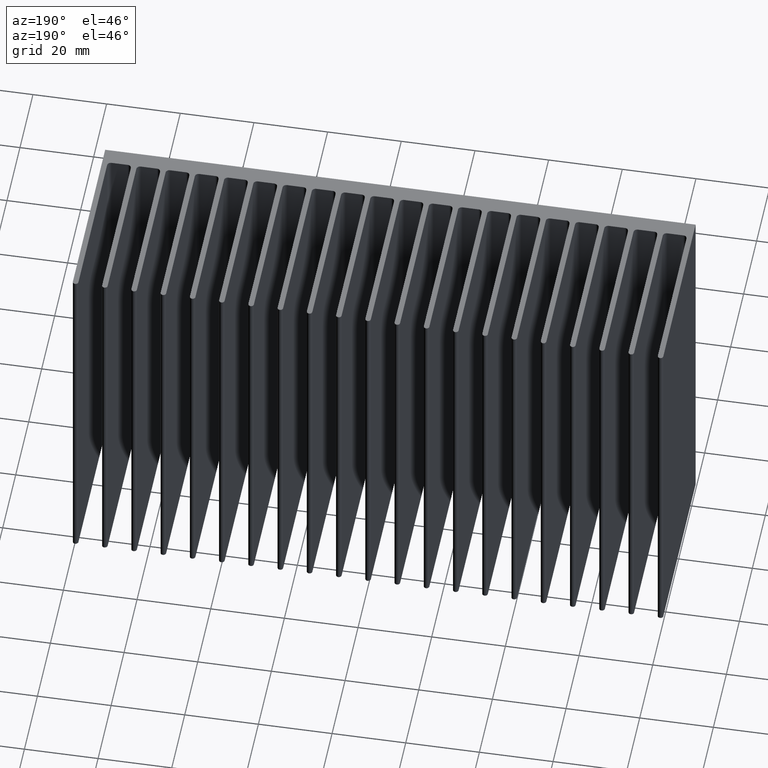
[diagram: clean part render]
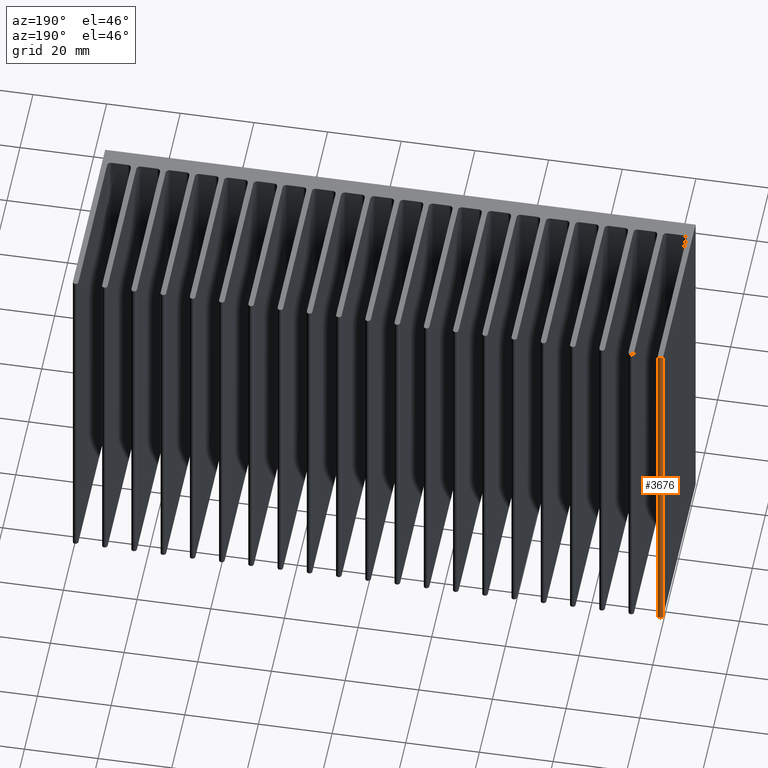
[diagram: same view with one face highlighted and labeled with its STEP entity id]
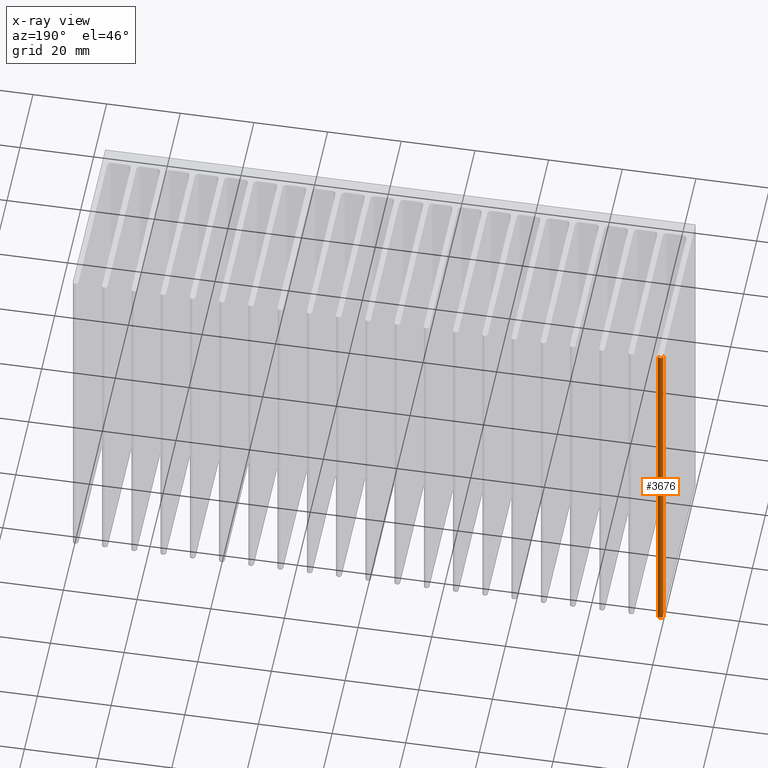
[diagram: x-ray of the same camera — body ghosted, the highlighted face saturated]
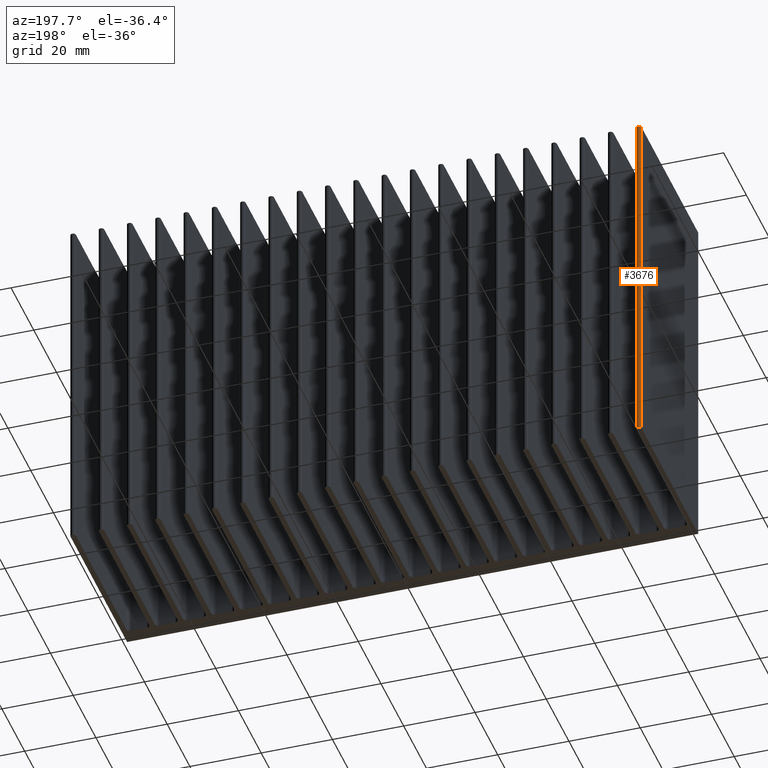
[diagram: same view with one face highlighted and labeled with its STEP entity id]
A machine part, auxiliary view. The second image highlights one B-rep face of the part: STEP entity #3676.
The next image is the same camera in x-ray: the body ghosted, the highlighted face saturated — about 0% of this face is hidden behind the body in this view.
A second angle (auxiliary view) of the same face is appended — the face is thin or edge-on in the first view.
In plain terms, the highlighted cylindrical surface (edge-blend (fillet) strip) has radius 0.75 mm, axis along (-0, -0, -1).
Its self-contained STEP definition (entity closure, byte-faithful):
#63 = VERTEX_POINT ( 'NONE', #160 ) ;
#81 = DIRECTION ( 'NONE',  ( -0.0000000000000000000, -0.0000000000000000000, -1.000000000000000000 ) ) ;
#98 = EDGE_CURVE ( 'NONE', #2960, #63, #337, .T. ) ;
#121 = CARTESIAN_POINT ( 'NONE',  ( -78.64999999999950830, 24.49999999999925748, 50.00000000000000000 ) ) ;
#160 = CARTESIAN_POINT ( 'NONE',  ( -78.64999999999950830, 24.49999999999925748, -50.00000000000000000 ) ) ;
#337 = LINE ( 'NONE', #121, #2794 ) ;
#680 = AXIS2_PLACEMENT_3D ( 'NONE', #1217, #1560, #4246 ) ;
#693 = EDGE_CURVE ( 'NONE', #2960, #1184, #2180, .T. ) ;
#716 = CARTESIAN_POINT ( 'NONE',  ( -80.15000000000087255, 24.49999999999925748, -50.00000000000000000 ) ) ;
#1042 = DIRECTION ( 'NONE',  ( 1.000000000000000000, 0.0000000000000000000, 0.0000000000000000000 ) ) ;
#1184 = VERTEX_POINT ( 'NONE', #2592 ) ;
#1217 = CARTESIAN_POINT ( 'NONE',  ( -79.40000000000088676, 24.49999999999834088, 50.00000000000000000 ) ) ;
#1330 = AXIS2_PLACEMENT_3D ( 'NONE', #3275, #3281, #3218 ) ;
#1384 = CARTESIAN_POINT ( 'NONE',  ( -79.40000000000088676, 24.49999999999834088, -50.00000000000000000 ) ) ;
#1498 = CARTESIAN_POINT ( 'NONE',  ( -78.64999999999950830, 24.49999999999925748, 50.00000000000000000 ) ) ;
#1560 = DIRECTION ( 'NONE',  ( -0.0000000000000000000, -0.0000000000000000000, -1.000000000000000000 ) ) ;
#1763 = LINE ( 'NONE', #2272, #2232 ) ;
#2180 = CIRCLE ( 'NONE', #1330, 0.7500000000009166001 ) ;
#2232 = VECTOR ( 'NONE', #4248, 1000.000000000000000 ) ;
#2241 = CIRCLE ( 'NONE', #3813, 0.7499999999999867883 ) ;
#2272 = CARTESIAN_POINT ( 'NONE',  ( -80.15000000000087255, 24.49999999999925748, 50.00000000000000000 ) ) ;
#2296 = CYLINDRICAL_SURFACE ( 'NONE', #680, 0.7499999999999867883 ) ;
#2318 = VERTEX_POINT ( 'NONE', #716 ) ;
#2378 = EDGE_CURVE ( 'NONE', #1184, #2318, #1763, .T. ) ;
#2592 = CARTESIAN_POINT ( 'NONE',  ( -80.15000000000087255, 24.49999999999925748, 50.00000000000000000 ) ) ;
#2627 = ORIENTED_EDGE ( 'NONE', *, *, #98, .T. ) ;
#2645 = FACE_OUTER_BOUND ( 'NONE', #3557, .T. ) ;
#2794 = VECTOR ( 'NONE', #81, 1000.000000000000000 ) ;
#2811 = ORIENTED_EDGE ( 'NONE', *, *, #693, .F. ) ;
#2908 = ORIENTED_EDGE ( 'NONE', *, *, #2378, .F. ) ;
#2910 = ORIENTED_EDGE ( 'NONE', *, *, #3416, .T. ) ;
#2960 = VERTEX_POINT ( 'NONE', #1498 ) ;
#3218 = DIRECTION ( 'NONE',  ( 1.000000000000000000, 0.0000000000000000000, 0.0000000000000000000 ) ) ;
#3275 = CARTESIAN_POINT ( 'NONE',  ( -79.40000000000088676, 24.49999999999834088, 50.00000000000000000 ) ) ;
#3281 = DIRECTION ( 'NONE',  ( 0.0000000000000000000, 0.0000000000000000000, 1.000000000000000000 ) ) ;
#3344 = DIRECTION ( 'NONE',  ( 0.0000000000000000000, 0.0000000000000000000, 1.000000000000000000 ) ) ;
#3416 = EDGE_CURVE ( 'NONE', #63, #2318, #2241, .T. ) ;
#3557 = EDGE_LOOP ( 'NONE', ( #2910, #2908, #2811, #2627 ) ) ;
#3676 = ADVANCED_FACE ( 'NONE', ( #2645 ), #2296, .T. ) ;
#3813 = AXIS2_PLACEMENT_3D ( 'NONE', #1384, #3344, #1042 ) ;
#4246 = DIRECTION ( 'NONE',  ( -1.000000000000000000, 0.0000000000000000000, 0.0000000000000000000 ) ) ;
#4248 = DIRECTION ( 'NONE',  ( -0.0000000000000000000, -0.0000000000000000000, -1.000000000000000000 ) ) ;